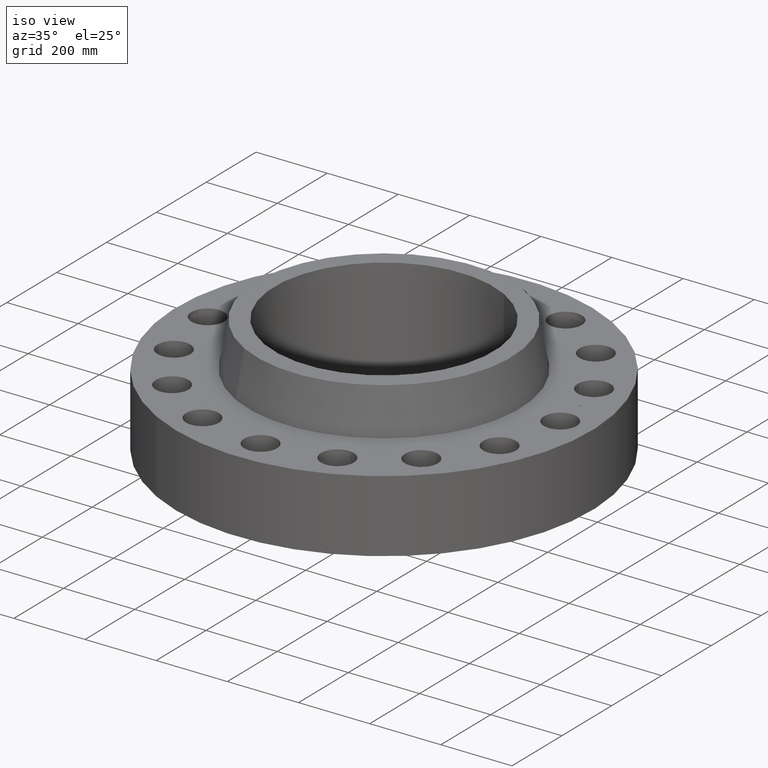
[diagram: clean part render]
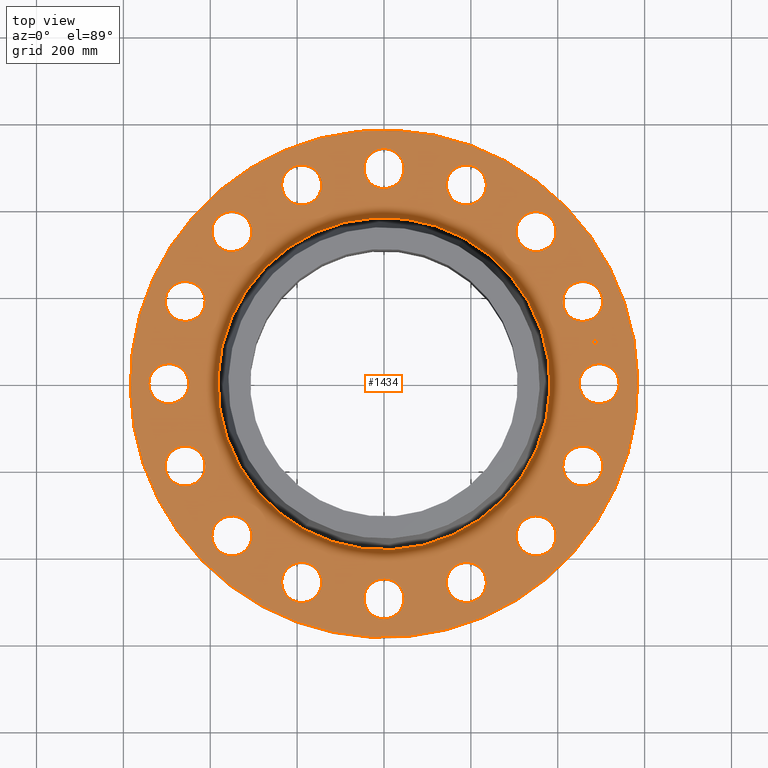
[diagram: tour spotlight — one face highlighted and labeled with its STEP entity id]
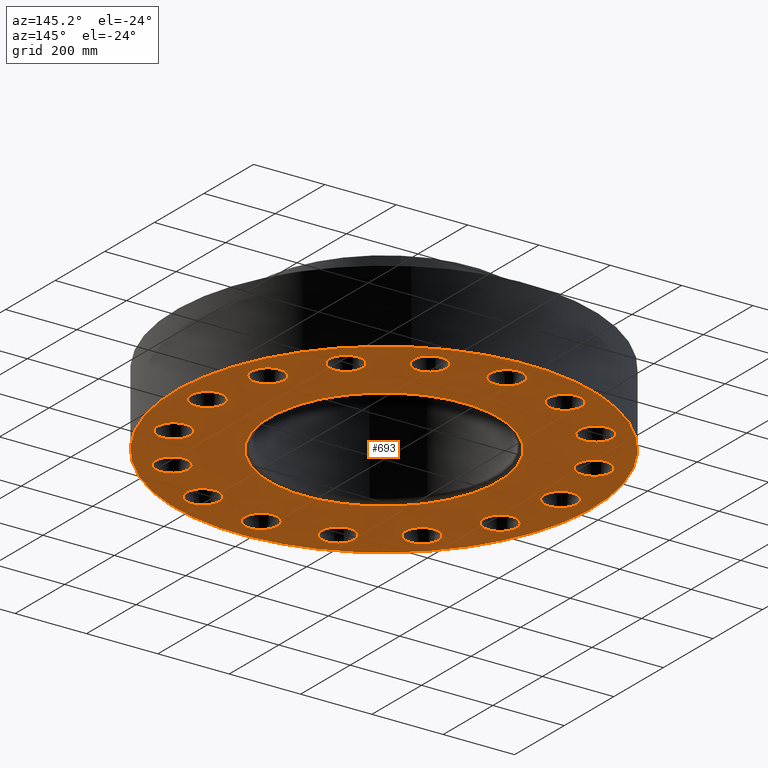
[diagram: tour spotlight — one face highlighted and labeled with its STEP entity id]
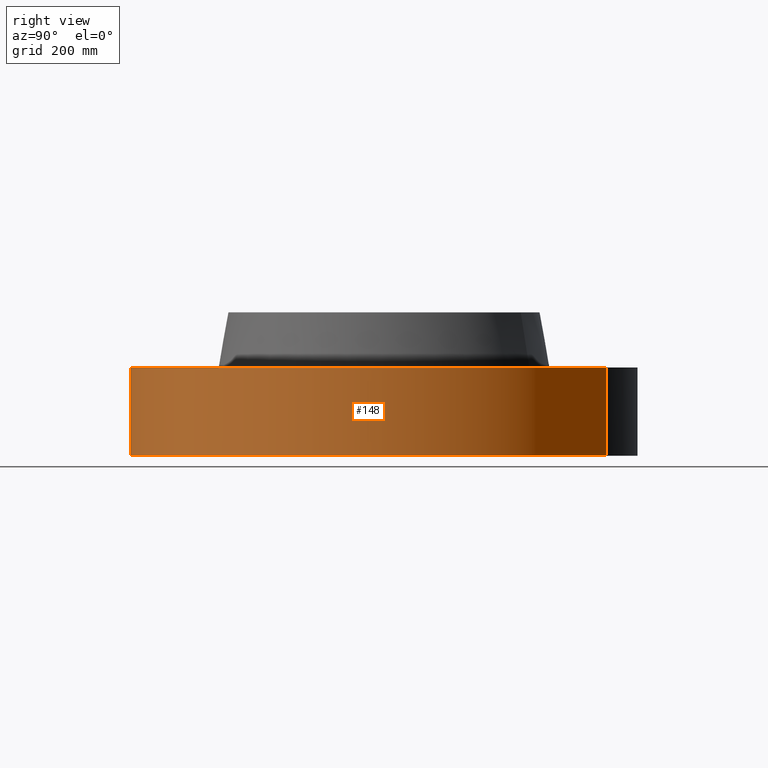
[diagram: tour spotlight — one face highlighted and labeled with its STEP entity id]
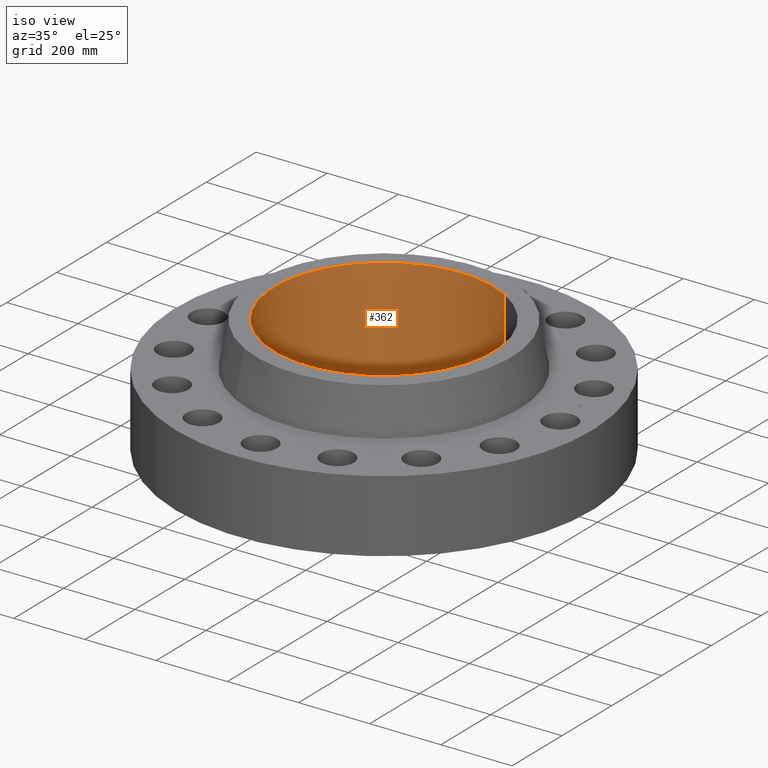
[diagram: tour spotlight — one face highlighted and labeled with its STEP entity id]
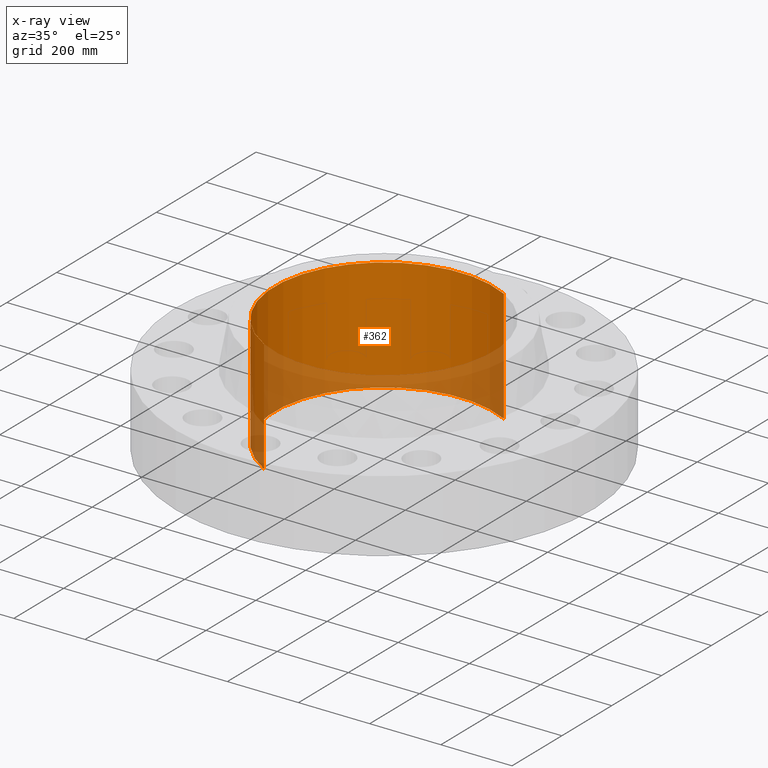
[diagram: x-ray of the same camera — body ghosted, this tour face saturated]
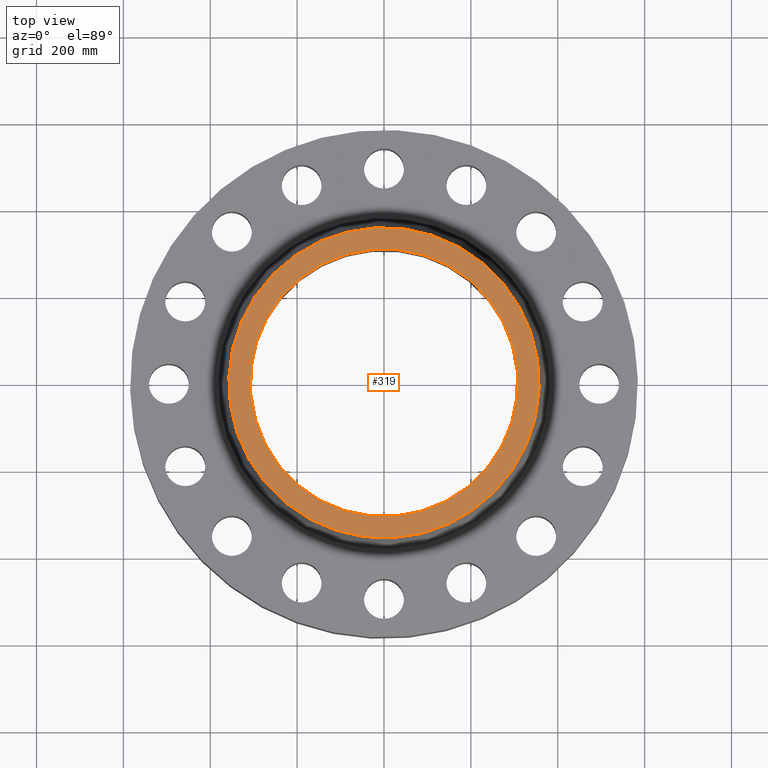
[diagram: tour spotlight — one face highlighted and labeled with its STEP entity id]
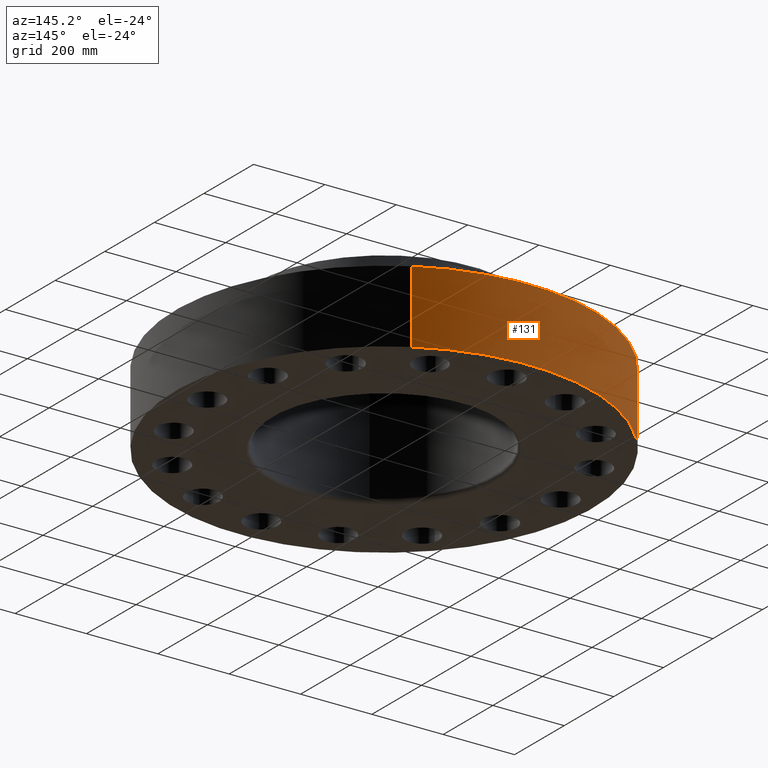
[diagram: tour spotlight — one face highlighted and labeled with its STEP entity id]
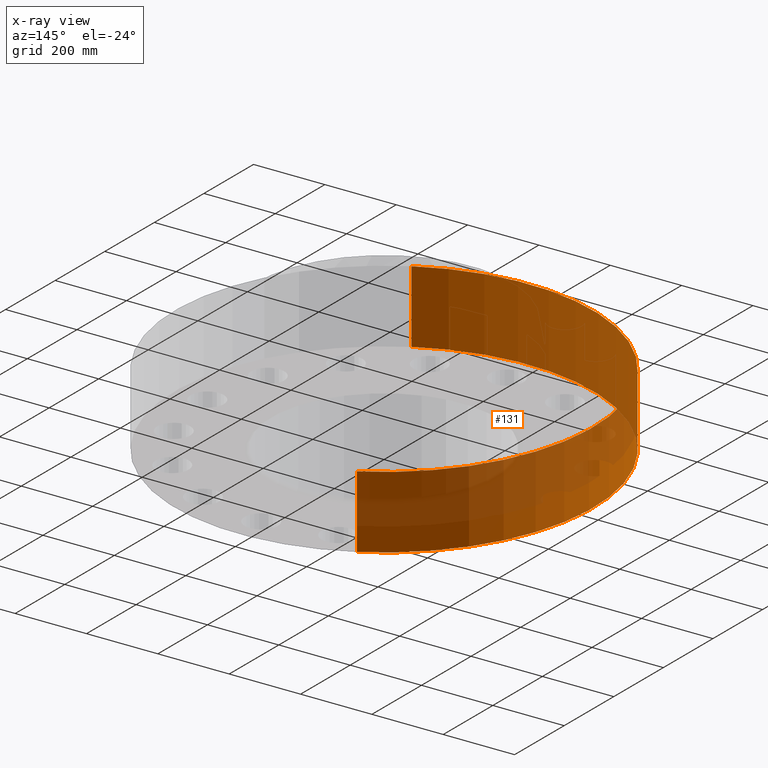
[diagram: x-ray of the same camera — body ghosted, this tour face saturated]
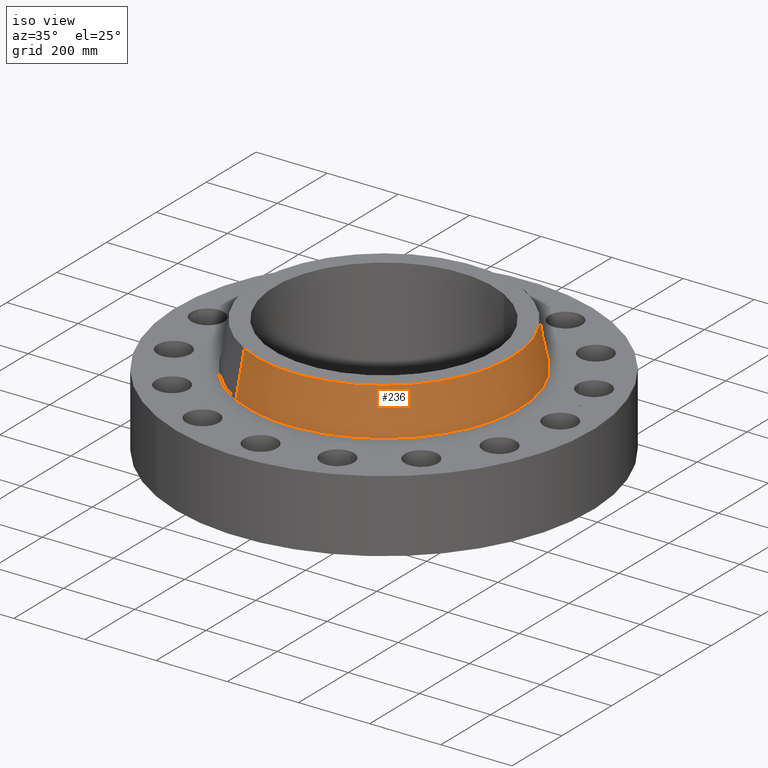
[diagram: tour spotlight — one face highlighted and labeled with its STEP entity id]
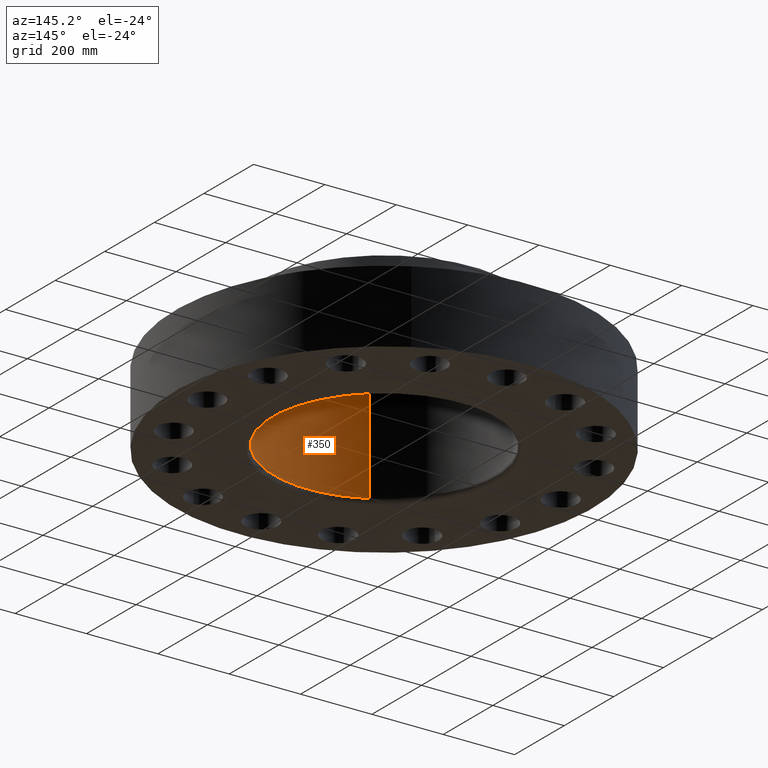
[diagram: tour spotlight — one face highlighted and labeled with its STEP entity id]
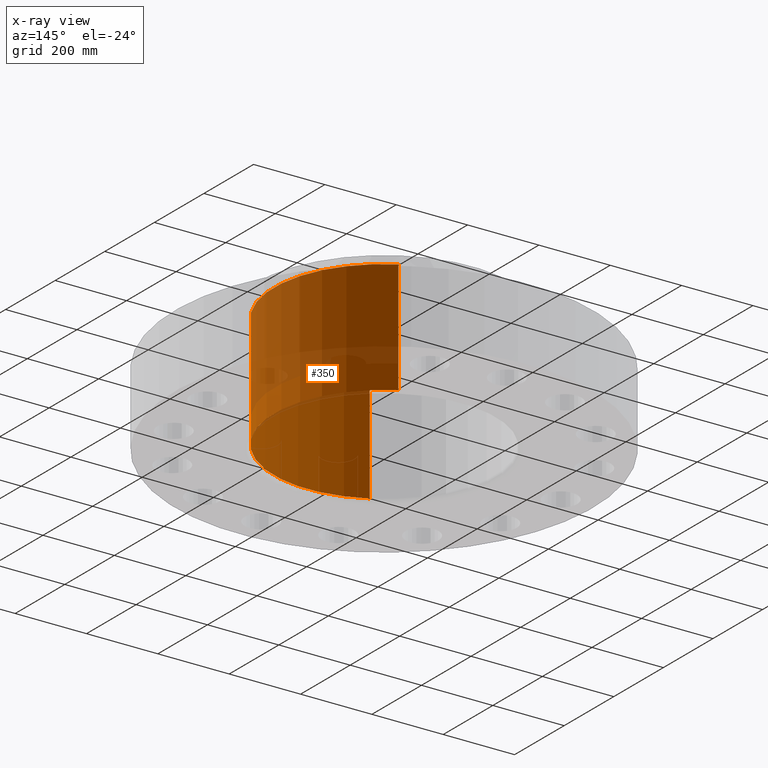
[diagram: x-ray of the same camera — body ghosted, this tour face saturated]
A machine part: a face-by-face anatomy tour. The part has 432 B-rep faces; the first image is the clean iso view, then the 8 largest visible faces are spotlighted one at a time (largest first), each with its STEP entity span.

Face 1 — top view, entity #1434. In plain terms, the highlighted planar face has unit normal (0, 0, -1).
Definition (entity closure, byte-faithful):
#65=AXIS2_PLACEMENT_3D('Circle Axis2P3D',#63,#64,$) ;
#82=AXIS2_PLACEMENT_3D('Circle Axis2P3D',#80,#81,$) ;
#115=AXIS2_PLACEMENT_3D('Circle Axis2P3D',#113,#114,$) ;
#139=AXIS2_PLACEMENT_3D('Circle Axis2P3D',#137,#138,$) ;
#156=AXIS2_PLACEMENT_3D('Circle Axis2P3D',#154,#155,$) ;
#191=AXIS2_PLACEMENT_3D('Circle Axis2P3D',#189,#190,$) ;
#715=AXIS2_PLACEMENT_3D('Circle Axis2P3D',#713,#714,$) ;
#727=AXIS2_PLACEMENT_3D('Circle Axis2P3D',#725,#726,$) ;
#758=AXIS2_PLACEMENT_3D('Circle Axis2P3D',#756,#757,$) ;
#770=AXIS2_PLACEMENT_3D('Circle Axis2P3D',#768,#769,$) ;
#801=AXIS2_PLACEMENT_3D('Circle Axis2P3D',#799,#800,$) ;
#813=AXIS2_PLACEMENT_3D('Circle Axis2P3D',#811,#812,$) ;
#844=AXIS2_PLACEMENT_3D('Circle Axis2P3D',#842,#843,$) ;
#856=AXIS2_PLACEMENT_3D('Circle Axis2P3D',#854,#855,$) ;
#887=AXIS2_PLACEMENT_3D('Circle Axis2P3D',#885,#886,$) ;
#899=AXIS2_PLACEMENT_3D('Circle Axis2P3D',#897,#898,$) ;
#930=AXIS2_PLACEMENT_3D('Circle Axis2P3D',#928,#929,$) ;
#942=AXIS2_PLACEMENT_3D('Circle Axis2P3D',#940,#941,$) ;
#973=AXIS2_PLACEMENT_3D('Circle Axis2P3D',#971,#972,$) ;
#985=AXIS2_PLACEMENT_3D('Circle Axis2P3D',#983,#984,$) ;
#1016=AXIS2_PLACEMENT_3D('Circle Axis2P3D',#1014,#1015,$) ;
#1028=AXIS2_PLACEMENT_3D('Circle Axis2P3D',#1026,#1027,$) ;
#1059=AXIS2_PLACEMENT_3D('Circle Axis2P3D',#1057,#1058,$) ;
#1071=AXIS2_PLACEMENT_3D('Circle Axis2P3D',#1069,#1070,$) ;
#1102=AXIS2_PLACEMENT_3D('Circle Axis2P3D',#1100,#1101,$) ;
#1114=AXIS2_PLACEMENT_3D('Circle Axis2P3D',#1112,#1113,$) ;
#1145=AXIS2_PLACEMENT_3D('Circle Axis2P3D',#1143,#1144,$) ;
#1157=AXIS2_PLACEMENT_3D('Circle Axis2P3D',#1155,#1156,$) ;
#1188=AXIS2_PLACEMENT_3D('Circle Axis2P3D',#1186,#1187,$) ;
#1200=AXIS2_PLACEMENT_3D('Circle Axis2P3D',#1198,#1199,$) ;
#1231=AXIS2_PLACEMENT_3D('Circle Axis2P3D',#1229,#1230,$) ;
#1243=AXIS2_PLACEMENT_3D('Circle Axis2P3D',#1241,#1242,$) ;
#1274=AXIS2_PLACEMENT_3D('Circle Axis2P3D',#1272,#1273,$) ;
#1286=AXIS2_PLACEMENT_3D('Circle Axis2P3D',#1284,#1285,$) ;
#1317=AXIS2_PLACEMENT_3D('Circle Axis2P3D',#1315,#1316,$) ;
#1329=AXIS2_PLACEMENT_3D('Circle Axis2P3D',#1327,#1328,$) ;
#1342=AXIS2_PLACEMENT_3D('Plane Axis2P3D',#1339,#1340,#1341) ;
#1418=AXIS2_PLACEMENT_3D('Circle Axis2P3D',#1416,#1417,$) ;
#1427=AXIS2_PLACEMENT_3D('Circle Axis2P3D',#1425,#1426,$) ;
#46=CARTESIAN_POINT('Vertex',(17.9071876502,0.87015735257,8.00000000003)) ;
#60=CARTESIAN_POINT('Vertex',(21.0928123499,-0.87015735257,8.00000000003)) ;
#63=CARTESIAN_POINT('Axis2P3D Location',(19.5000000001,0.,8.00000000003)) ;
#80=CARTESIAN_POINT('Axis2P3D Location',(19.5000000001,0.,8.00000000003)) ;
#110=CARTESIAN_POINT('Vertex',(-11.0267873879,-20.1843989236,8.00000000003)) ;
#113=CARTESIAN_POINT('Axis2P3D Location',(0.,0.,8.00000000003)) ;
#117=CARTESIAN_POINT('Vertex',(11.0267873879,20.1843989236,8.00000000003)) ;
#137=CARTESIAN_POINT('Axis2P3D Location',(0.,0.,8.00000000003)) ;
#154=CARTESIAN_POINT('Axis2P3D Location',(0.,0.,8.00000000003)) ;
#158=CARTESIAN_POINT('Vertex',(7.21552022665,13.2079211806,8.00000000003)) ;
#160=CARTESIAN_POINT('Vertex',(-7.21552022665,-13.2079211806,8.00000000003)) ;
#189=CARTESIAN_POINT('Axis2P3D Location',(0.,0.,8.00000000003)) ;
#703=CARTESIAN_POINT('Vertex',(-16.8770789573,6.0488634659,8.00000000003)) ;
#710=CARTESIAN_POINT('Vertex',(-19.1542228108,8.8757903964,8.00000000003)) ;
#713=CARTESIAN_POINT('Axis2P3D Location',(-18.015650884,7.46232693115,8.00000000003)) ;
#725=CARTESIAN_POINT('Axis2P3D Location',(-18.015650884,7.46232693115,8.00000000003)) ;
#746=CARTESIAN_POINT('Vertex',(13.2775879842,-12.0469996548,8.00000000003)) ;
#753=CARTESIAN_POINT('Vertex',(14.2995764822,-15.5301648116,8.00000000003)) ;
#756=CARTESIAN_POINT('Axis2P3D Location',(13.7885822332,-13.7885822332,8.00000000003)) ;
#768=CARTESIAN_POINT('Axis2P3D Location',(13.7885822332,-13.7885822332,8.00000000003)) ;
#789=CARTESIAN_POINT('Vertex',(-13.2775879842,12.0469996548,8.00000000003)) ;
#796=CARTESIAN_POINT('Vertex',(-14.2995764822,15.5301648116,8.00000000003)) ;
#799=CARTESIAN_POINT('Axis2P3D Location',(-13.7885822332,13.7885822332,8.00000000003)) ;
#811=CARTESIAN_POINT('Axis2P3D Location',(-13.7885822332,13.7885822332,8.00000000003)) ;
#832=CARTESIAN_POINT('Vertex',(7.6567046021,-16.2110893525,8.00000000003)) ;
#839=CARTESIAN_POINT('Vertex',(7.26794926019,-19.8202124156,8.00000000003)) ;
#842=CARTESIAN_POINT('Axis2P3D Location',(7.46232693115,-18.015650884,8.00000000003)) ;
#854=CARTESIAN_POINT('Axis2P3D Location',(7.46232693115,-18.015650884,8.00000000003)) ;
#875=CARTESIAN_POINT('Vertex',(-7.6567046021,16.2110893525,8.00000000003)) ;
#882=CARTESIAN_POINT('Vertex',(-7.26794926019,19.8202124156,8.00000000003)) ;
#885=CARTESIAN_POINT('Axis2P3D Location',(-7.46232693115,18.015650884,8.00000000003)) ;
#897=CARTESIAN_POINT('Axis2P3D Location',(-7.46232693115,18.015650884,8.00000000003)) ;
#918=CARTESIAN_POINT('Vertex',(0.87015735257,-17.9071876502,8.00000000003)) ;
#925=CARTESIAN_POINT('Vertex',(-0.87015735257,-21.0928123499,8.00000000003)) ;
#928=CARTESIAN_POINT('Axis2P3D Location',(-1.04389924724E-015,-19.5000000001,8.00000000003)) ;
#940=CARTESIAN_POINT('Axis2P3D Location',(-1.04389924724E-015,-19.5000000001,8.00000000003)) ;
#961=CARTESIAN_POINT('Vertex',(-0.87015735257,17.9071876502,8.00000000003)) ;
#968=CARTESIAN_POINT('Vertex',(0.87015735257,21.0928123499,8.00000000003)) ;
#971=CARTESIAN_POINT('Axis2P3D Location',(-1.34416201111E-015,19.5000000001,8.00000000003)) ;
#983=CARTESIAN_POINT('Axis2P3D Location',(-1.34416201111E-015,19.5000000001,8.00000000003)) ;
#1004=CARTESIAN_POINT('Vertex',(-6.0488634659,-16.8770789573,8.00000000003)) ;
#1011=CARTESIAN_POINT('Vertex',(-8.8757903964,-19.1542228108,8.00000000003)) ;
#1014=CARTESIAN_POINT('Axis2P3D Location',(-7.46232693115,-18.015650884,8.00000000003)) ;
#1026=CARTESIAN_POINT('Axis2P3D Location',(-7.46232693115,-18.015650884,8.00000000003)) ;
#1047=CARTESIAN_POINT('Vertex',(6.0488634659,16.8770789573,8.00000000003)) ;
#1054=CARTESIAN_POINT('Vertex',(8.8757903964,19.1542228108,8.00000000003)) ;
#1057=CARTESIAN_POINT('Axis2P3D Location',(7.46232693115,18.015650884,8.00000000003)) ;
#1069=CARTESIAN_POINT('Axis2P3D Location',(7.46232693115,18.015650884,8.00000000003)) ;
#1090=CARTESIAN_POINT('Vertex',(-12.0469996548,-13.2775879842,8.00000000003)) ;
#1097=CARTESIAN_POINT('Vertex',(-15.5301648116,-14.2995764822,8.00000000003)) ;
#1100=CARTESIAN_POINT('Axis2P3D Location',(-13.7885822332,-13.7885822332,8.00000000003)) ;
#1112=CARTESIAN_POINT('Axis2P3D Location',(-13.7885822332,-13.7885822332,8.00000000003)) ;
#1133=CARTESIAN_POINT('Vertex',(12.0469996548,13.2775879842,8.00000000003)) ;
#1140=CARTESIAN_POINT('Vertex',(15.5301648116,14.2995764822,8.00000000003)) ;
#1143=CARTESIAN_POINT('Axis2P3D Location',(13.7885822332,13.7885822332,8.00000000003)) ;
#1155=CARTESIAN_POINT('Axis2P3D Location',(13.7885822332,13.7885822332,8.00000000003)) ;
#1176=CARTESIAN_POINT('Vertex',(-16.2110893525,-7.6567046021,8.00000000003)) ;
#1183=CARTESIAN_POINT('Vertex',(-19.8202124156,-7.26794926019,8.00000000003)) ;
#1186=CARTESIAN_POINT('Axis2P3D Location',(-18.015650884,-7.46232693115,8.00000000003)) ;
#1198=CARTESIAN_POINT('Axis2P3D Location',(-18.015650884,-7.46232693115,8.00000000003)) ;
#1219=CARTESIAN_POINT('Vertex',(16.2110893525,7.6567046021,8.00000000003)) ;
#1226=CARTESIAN_POINT('Vertex',(19.8202124156,7.26794926019,8.00000000003)) ;
#1229=CARTESIAN_POINT('Axis2P3D Location',(18.015650884,7.46232693115,8.00000000003)) ;
#1241=CARTESIAN_POINT('Axis2P3D Location',(18.015650884,7.46232693115,8.00000000003)) ;
#1262=CARTESIAN_POINT('Vertex',(-17.9071876502,-0.87015735257,8.00000000003)) ;
#1269=CARTESIAN_POINT('Vertex',(-21.0928123499,0.87015735257,8.00000000003)) ;
#1272=CARTESIAN_POINT('Axis2P3D Location',(-19.5000000001,-2.38806125835E-015,8.00000000003)) ;
#1284=CARTESIAN_POINT('Axis2P3D Location',(-19.5000000001,-2.38806125835E-015,8.00000000003)) ;
#1305=CARTESIAN_POINT('Vertex',(16.8770789573,-6.0488634659,8.00000000003)) ;
#1312=CARTESIAN_POINT('Vertex',(19.1542228108,-8.8757903964,8.00000000003)) ;
#1315=CARTESIAN_POINT('Axis2P3D Location',(18.015650884,-7.46232693115,8.00000000003)) ;
#1327=CARTESIAN_POINT('Axis2P3D Location',(18.015650884,-7.46232693115,8.00000000003)) ;
#1339=CARTESIAN_POINT('Axis2P3D Location',(0.,23.0000000001,8.00000000003)) ;
#1416=CARTESIAN_POINT('Axis2P3D Location',(19.1253129679,3.80426127933,8.00000000003)) ;
#1420=CARTESIAN_POINT('Vertex',(19.0770281132,4.04700563623,8.00000000003)) ;
#1422=CARTESIAN_POINT('Vertex',(19.1735978226,3.56151692243,8.00000000003)) ;
#1425=CARTESIAN_POINT('Axis2P3D Location',(19.1253129679,3.80426127933,8.00000000003)) ;
#64=DIRECTION('Axis2P3D Direction',(0.,-0.,-0.0393700787402)) ;
#81=DIRECTION('Axis2P3D Direction',(0.,-0.,-0.0393700787402)) ;
#114=DIRECTION('Axis2P3D Direction',(0.,0.,-0.0393700787402)) ;
#138=DIRECTION('Axis2P3D Direction',(0.,0.,-0.0393700787402)) ;
#155=DIRECTION('Axis2P3D Direction',(0.,0.,-0.0393700787402)) ;
#190=DIRECTION('Axis2P3D Direction',(0.,0.,-0.0393700787402)) ;
#714=DIRECTION('Axis2P3D Direction',(0.,0.,-0.0393700787402)) ;
#726=DIRECTION('Axis2P3D Direction',(0.,0.,-0.0393700787402)) ;
#757=DIRECTION('Axis2P3D Direction',(0.,-0.,-0.0393700787402)) ;
#769=DIRECTION('Axis2P3D Direction',(0.,-0.,-0.0393700787402)) ;
#800=DIRECTION('Axis2P3D Direction',(0.,0.,-0.0393700787402)) ;
#812=DIRECTION('Axis2P3D Direction',(0.,0.,-0.0393700787402)) ;
#843=DIRECTION('Axis2P3D Direction',(0.,-0.,-0.0393700787402)) ;
#855=DIRECTION('Axis2P3D Direction',(0.,-0.,-0.0393700787402)) ;
#886=DIRECTION('Axis2P3D Direction',(0.,0.,-0.0393700787402)) ;
#898=DIRECTION('Axis2P3D Direction',(0.,0.,-0.0393700787402)) ;
#929=DIRECTION('Axis2P3D Direction',(0.,-0.,-0.0393700787402)) ;
#941=DIRECTION('Axis2P3D Direction',(0.,-0.,-0.0393700787402)) ;
#972=DIRECTION('Axis2P3D Direction',(0.,0.,-0.0393700787402)) ;
#984=DIRECTION('Axis2P3D Direction',(0.,0.,-0.0393700787402)) ;
#1015=DIRECTION('Axis2P3D Direction',(-0.,0.,-0.0393700787402)) ;
#1027=DIRECTION('Axis2P3D Direction',(-0.,0.,-0.0393700787402)) ;
#1058=DIRECTION('Axis2P3D Direction',(0.,0.,-0.0393700787402)) ;
#1070=DIRECTION('Axis2P3D Direction',(0.,0.,-0.0393700787402)) ;
#1101=DIRECTION('Axis2P3D Direction',(-0.,0.,-0.0393700787402)) ;
#1113=DIRECTION('Axis2P3D Direction',(-0.,0.,-0.0393700787402)) ;
#1144=DIRECTION('Axis2P3D Direction',(0.,0.,-0.0393700787402)) ;
#1156=DIRECTION('Axis2P3D Direction',(0.,0.,-0.0393700787402)) ;
#1187=DIRECTION('Axis2P3D Direction',(-0.,0.,-0.0393700787402)) ;
#1199=DIRECTION('Axis2P3D Direction',(-0.,0.,-0.0393700787402)) ;
#1230=DIRECTION('Axis2P3D Direction',(0.,0.,-0.0393700787402)) ;
#1242=DIRECTION('Axis2P3D Direction',(0.,0.,-0.0393700787402)) ;
#1273=DIRECTION('Axis2P3D Direction',(-0.,0.,-0.0393700787402)) ;
#1285=DIRECTION('Axis2P3D Direction',(-0.,0.,-0.0393700787402)) ;
#1316=DIRECTION('Axis2P3D Direction',(0.,-0.,-0.0393700787402)) ;
#1328=DIRECTION('Axis2P3D Direction',(0.,-0.,-0.0393700787402)) ;
#1340=DIRECTION('Axis2P3D Direction',(0.,0.,-0.0393700787402)) ;
#1341=DIRECTION('Axis2P3D XDirection',(0.0393700787402,0.,0.)) ;
#1417=DIRECTION('Axis2P3D Direction',(0.,0.,-0.0393700787402)) ;
#1426=DIRECTION('Axis2P3D Direction',(0.,0.,-0.0393700787402)) ;
#1345=ORIENTED_EDGE('',*,*,#141,.F.) ;
#1346=ORIENTED_EDGE('',*,*,#119,.F.) ;
#1349=ORIENTED_EDGE('',*,*,#67,.T.) ;
#1350=ORIENTED_EDGE('',*,*,#84,.T.) ;
#1353=ORIENTED_EDGE('',*,*,#193,.T.) ;
#1354=ORIENTED_EDGE('',*,*,#162,.T.) ;
#1357=ORIENTED_EDGE('',*,*,#1331,.T.) ;
#1358=ORIENTED_EDGE('',*,*,#1319,.T.) ;
#1361=ORIENTED_EDGE('',*,*,#772,.T.) ;
#1362=ORIENTED_EDGE('',*,*,#760,.T.) ;
#1365=ORIENTED_EDGE('',*,*,#858,.T.) ;
#1366=ORIENTED_EDGE('',*,*,#846,.T.) ;
#1369=ORIENTED_EDGE('',*,*,#944,.T.) ;
#1370=ORIENTED_EDGE('',*,*,#932,.T.) ;
#1373=ORIENTED_EDGE('',*,*,#1030,.T.) ;
#1374=ORIENTED_EDGE('',*,*,#1018,.T.) ;
#1377=ORIENTED_EDGE('',*,*,#1116,.T.) ;
#1378=ORIENTED_EDGE('',*,*,#1104,.T.) ;
#1381=ORIENTED_EDGE('',*,*,#1202,.T.) ;
#1382=ORIENTED_EDGE('',*,*,#1190,.T.) ;
#1385=ORIENTED_EDGE('',*,*,#1288,.T.) ;
#1386=ORIENTED_EDGE('',*,*,#1276,.T.) ;
#1389=ORIENTED_EDGE('',*,*,#729,.T.) ;
#1390=ORIENTED_EDGE('',*,*,#717,.T.) ;
#1393=ORIENTED_EDGE('',*,*,#815,.T.) ;
#1394=ORIENTED_EDGE('',*,*,#803,.T.) ;
#1397=ORIENTED_EDGE('',*,*,#901,.T.) ;
#1398=ORIENTED_EDGE('',*,*,#889,.T.) ;
#1401=ORIENTED_EDGE('',*,*,#987,.T.) ;
#1402=ORIENTED_EDGE('',*,*,#975,.T.) ;
#1405=ORIENTED_EDGE('',*,*,#1073,.T.) ;
#1406=ORIENTED_EDGE('',*,*,#1061,.T.) ;
#1409=ORIENTED_EDGE('',*,*,#1159,.T.) ;
#1410=ORIENTED_EDGE('',*,*,#1147,.T.) ;
#1413=ORIENTED_EDGE('',*,*,#1245,.T.) ;
#1414=ORIENTED_EDGE('',*,*,#1233,.T.) ;
#1431=ORIENTED_EDGE('',*,*,#1424,.T.) ;
#1432=ORIENTED_EDGE('',*,*,#1429,.T.) ;
#1351=FACE_BOUND('',#1348,.T.) ;
#1355=FACE_BOUND('',#1352,.T.) ;
#1359=FACE_BOUND('',#1356,.T.) ;
#1363=FACE_BOUND('',#1360,.T.) ;
#1367=FACE_BOUND('',#1364,.T.) ;
#1371=FACE_BOUND('',#1368,.T.) ;
#1375=FACE_BOUND('',#1372,.T.) ;
#1379=FACE_BOUND('',#1376,.T.) ;
#1383=FACE_BOUND('',#1380,.T.) ;
#1387=FACE_BOUND('',#1384,.T.) ;
#1391=FACE_BOUND('',#1388,.T.) ;
#1395=FACE_BOUND('',#1392,.T.) ;
#1399=FACE_BOUND('',#1396,.T.) ;
#1403=FACE_BOUND('',#1400,.T.) ;
#1407=FACE_BOUND('',#1404,.T.) ;
#1411=FACE_BOUND('',#1408,.T.) ;
#1415=FACE_BOUND('',#1412,.T.) ;
#1433=FACE_BOUND('',#1430,.T.) ;
#1434=ADVANCED_FACE('PartBody',(#1347,#1351,#1355,#1359,#1363,#1367,#1371,#1375,#1379,#1383,#1387,#1391,#1395,#1399,#1403,#1407,#1411,#1415,#1433),#1343,.F.) ;
#66=CIRCLE('generated circle',#65,1.81500000001) ;
#83=CIRCLE('generated circle',#82,1.81500000001) ;
#116=CIRCLE('generated circle',#115,23.0000000001) ;
#140=CIRCLE('generated circle',#139,23.0000000001) ;
#157=CIRCLE('generated circle',#156,15.0503459779) ;
#192=CIRCLE('generated circle',#191,15.0503459779) ;
#716=CIRCLE('generated circle',#715,1.81500000001) ;
#728=CIRCLE('generated circle',#727,1.81500000001) ;
#759=CIRCLE('generated circle',#758,1.81500000001) ;
#771=CIRCLE('generated circle',#770,1.81500000001) ;
#802=CIRCLE('generated circle',#801,1.81500000001) ;
#814=CIRCLE('generated circle',#813,1.81500000001) ;
#845=CIRCLE('generated circle',#844,1.81500000001) ;
#857=CIRCLE('generated circle',#856,1.81500000001) ;
#888=CIRCLE('generated circle',#887,1.81500000001) ;
#900=CIRCLE('generated circle',#899,1.81500000001) ;
#931=CIRCLE('generated circle',#930,1.81500000001) ;
#943=CIRCLE('generated circle',#942,1.81500000001) ;
#974=CIRCLE('generated circle',#973,1.81500000001) ;
#986=CIRCLE('generated circle',#985,1.81500000001) ;
#1017=CIRCLE('generated circle',#1016,1.81500000001) ;
#1029=CIRCLE('generated circle',#1028,1.81500000001) ;
#1060=CIRCLE('generated circle',#1059,1.81500000001) ;
#1072=CIRCLE('generated circle',#1071,1.81500000001) ;
#1103=CIRCLE('generated circle',#1102,1.81500000001) ;
#1115=CIRCLE('generated circle',#1114,1.81500000001) ;
#1146=CIRCLE('generated circle',#1145,1.81500000001) ;
#1158=CIRCLE('generated circle',#1157,1.81500000001) ;
#1189=CIRCLE('generated circle',#1188,1.81500000001) ;
#1201=CIRCLE('generated circle',#1200,1.81500000001) ;
#1232=CIRCLE('generated circle',#1231,1.81500000001) ;
#1244=CIRCLE('generated circle',#1243,1.81500000001) ;
#1275=CIRCLE('generated circle',#1274,1.81500000001) ;
#1287=CIRCLE('generated circle',#1286,1.81500000001) ;
#1318=CIRCLE('generated circle',#1317,1.81500000001) ;
#1330=CIRCLE('generated circle',#1329,1.81500000001) ;
#1419=CIRCLE('generated circle',#1418,0.247500000001) ;
#1428=CIRCLE('generated circle',#1427,0.247500000001) ;
#67=EDGE_CURVE('',#47,#61,#66,.T.) ;
#84=EDGE_CURVE('',#61,#47,#83,.T.) ;
#119=EDGE_CURVE('',#111,#118,#116,.T.) ;
#141=EDGE_CURVE('',#118,#111,#140,.T.) ;
#162=EDGE_CURVE('',#159,#161,#157,.T.) ;
#193=EDGE_CURVE('',#161,#159,#192,.T.) ;
#717=EDGE_CURVE('',#704,#711,#716,.T.) ;
#729=EDGE_CURVE('',#711,#704,#728,.T.) ;
#760=EDGE_CURVE('',#747,#754,#759,.T.) ;
#772=EDGE_CURVE('',#754,#747,#771,.T.) ;
#803=EDGE_CURVE('',#790,#797,#802,.T.) ;
#815=EDGE_CURVE('',#797,#790,#814,.T.) ;
#846=EDGE_CURVE('',#833,#840,#845,.T.) ;
#858=EDGE_CURVE('',#840,#833,#857,.T.) ;
#889=EDGE_CURVE('',#876,#883,#888,.T.) ;
#901=EDGE_CURVE('',#883,#876,#900,.T.) ;
#932=EDGE_CURVE('',#919,#926,#931,.T.) ;
#944=EDGE_CURVE('',#926,#919,#943,.T.) ;
#975=EDGE_CURVE('',#962,#969,#974,.T.) ;
#987=EDGE_CURVE('',#969,#962,#986,.T.) ;
#1018=EDGE_CURVE('',#1005,#1012,#1017,.T.) ;
#1030=EDGE_CURVE('',#1012,#1005,#1029,.T.) ;
#1061=EDGE_CURVE('',#1048,#1055,#1060,.T.) ;
#1073=EDGE_CURVE('',#1055,#1048,#1072,.T.) ;
#1104=EDGE_CURVE('',#1091,#1098,#1103,.T.) ;
#1116=EDGE_CURVE('',#1098,#1091,#1115,.T.) ;
#1147=EDGE_CURVE('',#1134,#1141,#1146,.T.) ;
#1159=EDGE_CURVE('',#1141,#1134,#1158,.T.) ;
#1190=EDGE_CURVE('',#1177,#1184,#1189,.T.) ;
#1202=EDGE_CURVE('',#1184,#1177,#1201,.T.) ;
#1233=EDGE_CURVE('',#1220,#1227,#1232,.T.) ;
#1245=EDGE_CURVE('',#1227,#1220,#1244,.T.) ;
#1276=EDGE_CURVE('',#1263,#1270,#1275,.T.) ;
#1288=EDGE_CURVE('',#1270,#1263,#1287,.T.) ;
#1319=EDGE_CURVE('',#1306,#1313,#1318,.T.) ;
#1331=EDGE_CURVE('',#1313,#1306,#1330,.T.) ;
#1424=EDGE_CURVE('',#1421,#1423,#1419,.T.) ;
#1429=EDGE_CURVE('',#1423,#1421,#1428,.T.) ;
#1344=EDGE_LOOP('',(#1345,#1346)) ;
#1348=EDGE_LOOP('',(#1349,#1350)) ;
#1352=EDGE_LOOP('',(#1353,#1354)) ;
#1356=EDGE_LOOP('',(#1357,#1358)) ;
#1360=EDGE_LOOP('',(#1361,#1362)) ;
#1364=EDGE_LOOP('',(#1365,#1366)) ;
#1368=EDGE_LOOP('',(#1369,#1370)) ;
#1372=EDGE_LOOP('',(#1373,#1374)) ;
#1376=EDGE_LOOP('',(#1377,#1378)) ;
#1380=EDGE_LOOP('',(#1381,#1382)) ;
#1384=EDGE_LOOP('',(#1385,#1386)) ;
#1388=EDGE_LOOP('',(#1389,#1390)) ;
#1392=EDGE_LOOP('',(#1393,#1394)) ;
#1396=EDGE_LOOP('',(#1397,#1398)) ;
#1400=EDGE_LOOP('',(#1401,#1402)) ;
#1404=EDGE_LOOP('',(#1405,#1406)) ;
#1408=EDGE_LOOP('',(#1409,#1410)) ;
#1412=EDGE_LOOP('',(#1413,#1414)) ;
#1430=EDGE_LOOP('',(#1431,#1432)) ;
#1347=FACE_OUTER_BOUND('',#1344,.T.) ;
#1343=PLANE('',#1342) ;
#47=VERTEX_POINT('',#46) ;
#61=VERTEX_POINT('',#60) ;
#111=VERTEX_POINT('',#110) ;
#118=VERTEX_POINT('',#117) ;
#159=VERTEX_POINT('',#158) ;
#161=VERTEX_POINT('',#160) ;
#704=VERTEX_POINT('',#703) ;
#711=VERTEX_POINT('',#710) ;
#747=VERTEX_POINT('',#746) ;
#754=VERTEX_POINT('',#753) ;
#790=VERTEX_POINT('',#789) ;
#797=VERTEX_POINT('',#796) ;
#833=VERTEX_POINT('',#832) ;
#840=VERTEX_POINT('',#839) ;
#876=VERTEX_POINT('',#875) ;
#883=VERTEX_POINT('',#882) ;
#919=VERTEX_POINT('',#918) ;
#926=VERTEX_POINT('',#925) ;
#962=VERTEX_POINT('',#961) ;
#969=VERTEX_POINT('',#968) ;
#1005=VERTEX_POINT('',#1004) ;
#1012=VERTEX_POINT('',#1011) ;
#1048=VERTEX_POINT('',#1047) ;
#1055=VERTEX_POINT('',#1054) ;
#1091=VERTEX_POINT('',#1090) ;
#1098=VERTEX_POINT('',#1097) ;
#1134=VERTEX_POINT('',#1133) ;
#1141=VERTEX_POINT('',#1140) ;
#1177=VERTEX_POINT('',#1176) ;
#1184=VERTEX_POINT('',#1183) ;
#1220=VERTEX_POINT('',#1219) ;
#1227=VERTEX_POINT('',#1226) ;
#1263=VERTEX_POINT('',#1262) ;
#1270=VERTEX_POINT('',#1269) ;
#1306=VERTEX_POINT('',#1305) ;
#1313=VERTEX_POINT('',#1312) ;
#1421=VERTEX_POINT('',#1420) ;
#1423=VERTEX_POINT('',#1422) ;

Face 2 — auxiliary view, entity #693. In plain terms, the highlighted planar face has unit normal (0, 0, -1).
Definition (entity closure, byte-faithful):
#51=AXIS2_PLACEMENT_3D('Circle Axis2P3D',#49,#50,$) ;
#77=AXIS2_PLACEMENT_3D('Circle Axis2P3D',#75,#76,$) ;
#99=AXIS2_PLACEMENT_3D('Circle Axis2P3D',#97,#98,$) ;
#134=AXIS2_PLACEMENT_3D('Circle Axis2P3D',#132,#133,$) ;
#377=AXIS2_PLACEMENT_3D('Circle Axis2P3D',#375,#376,$) ;
#396=AXIS2_PLACEMENT_3D('Circle Axis2P3D',#394,#395,$) ;
#409=AXIS2_PLACEMENT_3D('Plane Axis2P3D',#406,#407,#408) ;
#425=AXIS2_PLACEMENT_3D('Circle Axis2P3D',#423,#424,$) ;
#434=AXIS2_PLACEMENT_3D('Circle Axis2P3D',#432,#433,$) ;
#443=AXIS2_PLACEMENT_3D('Circle Axis2P3D',#441,#442,$) ;
#452=AXIS2_PLACEMENT_3D('Circle Axis2P3D',#450,#451,$) ;
#461=AXIS2_PLACEMENT_3D('Circle Axis2P3D',#459,#460,$) ;
#470=AXIS2_PLACEMENT_3D('Circle Axis2P3D',#468,#469,$) ;
#479=AXIS2_PLACEMENT_3D('Circle Axis2P3D',#477,#478,$) ;
#488=AXIS2_PLACEMENT_3D('Circle Axis2P3D',#486,#487,$) ;
#497=AXIS2_PLACEMENT_3D('Circle Axis2P3D',#495,#496,$) ;
#506=AXIS2_PLACEMENT_3D('Circle Axis2P3D',#504,#505,$) ;
#515=AXIS2_PLACEMENT_3D('Circle Axis2P3D',#513,#514,$) ;
#524=AXIS2_PLACEMENT_3D('Circle Axis2P3D',#522,#523,$) ;
#533=AXIS2_PLACEMENT_3D('Circle Axis2P3D',#531,#532,$) ;
#542=AXIS2_PLACEMENT_3D('Circle Axis2P3D',#540,#541,$) ;
#551=AXIS2_PLACEMENT_3D('Circle Axis2P3D',#549,#550,$) ;
#560=AXIS2_PLACEMENT_3D('Circle Axis2P3D',#558,#559,$) ;
#569=AXIS2_PLACEMENT_3D('Circle Axis2P3D',#567,#568,$) ;
#578=AXIS2_PLACEMENT_3D('Circle Axis2P3D',#576,#577,$) ;
#587=AXIS2_PLACEMENT_3D('Circle Axis2P3D',#585,#586,$) ;
#596=AXIS2_PLACEMENT_3D('Circle Axis2P3D',#594,#595,$) ;
#605=AXIS2_PLACEMENT_3D('Circle Axis2P3D',#603,#604,$) ;
#614=AXIS2_PLACEMENT_3D('Circle Axis2P3D',#612,#613,$) ;
#623=AXIS2_PLACEMENT_3D('Circle Axis2P3D',#621,#622,$) ;
#632=AXIS2_PLACEMENT_3D('Circle Axis2P3D',#630,#631,$) ;
#641=AXIS2_PLACEMENT_3D('Circle Axis2P3D',#639,#640,$) ;
#650=AXIS2_PLACEMENT_3D('Circle Axis2P3D',#648,#649,$) ;
#659=AXIS2_PLACEMENT_3D('Circle Axis2P3D',#657,#658,$) ;
#668=AXIS2_PLACEMENT_3D('Circle Axis2P3D',#666,#667,$) ;
#677=AXIS2_PLACEMENT_3D('Circle Axis2P3D',#675,#676,$) ;
#686=AXIS2_PLACEMENT_3D('Circle Axis2P3D',#684,#685,$) ;
#44=CARTESIAN_POINT('Vertex',(17.9071876502,0.87015735257,0.)) ;
#49=CARTESIAN_POINT('Axis2P3D Location',(19.5000000001,0.,0.)) ;
#53=CARTESIAN_POINT('Vertex',(21.0928123499,-0.87015735257,0.)) ;
#75=CARTESIAN_POINT('Axis2P3D Location',(19.5000000001,0.,0.)) ;
#97=CARTESIAN_POINT('Axis2P3D Location',(0.,0.,2.23792987641E-015)) ;
#101=CARTESIAN_POINT('Vertex',(-11.0267873879,-20.1843989236,3.35689481461E-015)) ;
#103=CARTESIAN_POINT('Vertex',(11.0267873879,20.1843989236,3.35689481461E-015)) ;
#132=CARTESIAN_POINT('Axis2P3D Location',(0.,0.,2.23792987641E-015)) ;
#372=CARTESIAN_POINT('Vertex',(-6.0527474249,-11.0794798439,-1.39870617276E-015)) ;
#375=CARTESIAN_POINT('Axis2P3D Location',(0.,0.,-1.39870617276E-015)) ;
#379=CARTESIAN_POINT('Vertex',(6.0527474249,11.0794798439,-1.39870617276E-015)) ;
#394=CARTESIAN_POINT('Axis2P3D Location',(0.,0.,-1.39870617276E-015)) ;
#406=CARTESIAN_POINT('Axis2P3D Location',(0.,12.6250000001,0.)) ;
#423=CARTESIAN_POINT('Axis2P3D Location',(18.015650884,-7.46232693115,0.)) ;
#427=CARTESIAN_POINT('Vertex',(16.8770789573,-6.0488634659,0.)) ;
#429=CARTESIAN_POINT('Vertex',(19.1542228108,-8.8757903964,0.)) ;
#432=CARTESIAN_POINT('Axis2P3D Location',(18.015650884,-7.46232693115,0.)) ;
#441=CARTESIAN_POINT('Axis2P3D Location',(13.7885822332,-13.7885822332,0.)) ;
#445=CARTESIAN_POINT('Vertex',(13.2775879842,-12.0469996548,0.)) ;
#447=CARTESIAN_POINT('Vertex',(14.2995764822,-15.5301648116,0.)) ;
#450=CARTESIAN_POINT('Axis2P3D Location',(13.7885822332,-13.7885822332,0.)) ;
#459=CARTESIAN_POINT('Axis2P3D Location',(7.46232693115,-18.015650884,0.)) ;
#463=CARTESIAN_POINT('Vertex',(7.6567046021,-16.2110893525,0.)) ;
#465=CARTESIAN_POINT('Vertex',(7.26794926019,-19.8202124156,0.)) ;
#468=CARTESIAN_POINT('Axis2P3D Location',(7.46232693115,-18.015650884,0.)) ;
#477=CARTESIAN_POINT('Axis2P3D Location',(-2.93728296279E-015,-19.5000000001,0.)) ;
#481=CARTESIAN_POINT('Vertex',(0.87015735257,-17.9071876502,0.)) ;
#483=CARTESIAN_POINT('Vertex',(-0.87015735257,-21.0928123499,0.)) ;
#486=CARTESIAN_POINT('Axis2P3D Location',(-4.05624790099E-015,-19.5000000001,0.)) ;
#495=CARTESIAN_POINT('Axis2P3D Location',(-7.46232693115,-18.015650884,0.)) ;
#499=CARTESIAN_POINT('Vertex',(-6.0488634659,-16.8770789573,0.)) ;
#501=CARTESIAN_POINT('Vertex',(-8.8757903964,-19.1542228108,0.)) ;
#504=CARTESIAN_POINT('Axis2P3D Location',(-7.46232693115,-18.015650884,0.)) ;
#513=CARTESIAN_POINT('Axis2P3D Location',(-13.7885822332,-13.7885822332,0.)) ;
#517=CARTESIAN_POINT('Vertex',(-12.0469996548,-13.2775879842,0.)) ;
#519=CARTESIAN_POINT('Vertex',(-15.5301648116,-14.2995764822,0.)) ;
#522=CARTESIAN_POINT('Axis2P3D Location',(-13.7885822332,-13.7885822332,0.)) ;
#531=CARTESIAN_POINT('Axis2P3D Location',(-18.015650884,-7.46232693115,0.)) ;
#535=CARTESIAN_POINT('Vertex',(-16.2110893525,-7.6567046021,0.)) ;
#537=CARTESIAN_POINT('Vertex',(-19.8202124156,-7.26794926019,0.)) ;
#540=CARTESIAN_POINT('Axis2P3D Location',(-18.015650884,-7.46232693115,0.)) ;
#549=CARTESIAN_POINT('Axis2P3D Location',(-19.5000000001,0.,0.)) ;
#553=CARTESIAN_POINT('Vertex',(-17.9071876502,-0.87015735257,0.)) ;
#555=CARTESIAN_POINT('Vertex',(-21.0928123499,0.87015735257,0.)) ;
#558=CARTESIAN_POINT('Axis2P3D Location',(-19.5000000001,-4.47585975282E-015,0.)) ;
#567=CARTESIAN_POINT('Axis2P3D Location',(-18.015650884,7.46232693115,0.)) ;
#571=CARTESIAN_POINT('Vertex',(-16.8770789573,6.0488634659,0.)) ;
#573=CARTESIAN_POINT('Vertex',(-19.1542228108,8.8757903964,0.)) ;
#576=CARTESIAN_POINT('Axis2P3D Location',(-18.015650884,7.46232693115,0.)) ;
#585=CARTESIAN_POINT('Axis2P3D Location',(-13.7885822332,13.7885822332,0.)) ;
#589=CARTESIAN_POINT('Vertex',(-13.2775879842,12.0469996548,0.)) ;
#591=CARTESIAN_POINT('Vertex',(-14.2995764822,15.5301648116,0.)) ;
#594=CARTESIAN_POINT('Axis2P3D Location',(-13.7885822332,13.7885822332,0.)) ;
#603=CARTESIAN_POINT('Axis2P3D Location',(-7.46232693115,18.015650884,0.)) ;
#607=CARTESIAN_POINT('Vertex',(-7.6567046021,16.2110893525,0.)) ;
#609=CARTESIAN_POINT('Vertex',(-7.26794926019,19.8202124156,0.)) ;
#612=CARTESIAN_POINT('Axis2P3D Location',(-7.46232693115,18.015650884,0.)) ;
#621=CARTESIAN_POINT('Axis2P3D Location',(-3.49676543189E-015,19.5000000001,0.)) ;
#625=CARTESIAN_POINT('Vertex',(-0.87015735257,17.9071876502,0.)) ;
#627=CARTESIAN_POINT('Vertex',(0.87015735257,21.0928123499,0.)) ;
#630=CARTESIAN_POINT('Axis2P3D Location',(-6.99353086378E-016,19.5000000001,0.)) ;
#639=CARTESIAN_POINT('Axis2P3D Location',(7.46232693115,18.015650884,0.)) ;
#643=CARTESIAN_POINT('Vertex',(6.0488634659,16.8770789573,0.)) ;
#645=CARTESIAN_POINT('Vertex',(8.8757903964,19.1542228108,-6.71378962923E-015)) ;
#648=CARTESIAN_POINT('Axis2P3D Location',(7.46232693115,18.015650884,0.)) ;
#657=CARTESIAN_POINT('Axis2P3D Location',(13.7885822332,13.7885822332,0.)) ;
#661=CARTESIAN_POINT('Vertex',(12.0469996548,13.2775879842,0.)) ;
#663=CARTESIAN_POINT('Vertex',(15.5301648116,14.2995764822,0.)) ;
#666=CARTESIAN_POINT('Axis2P3D Location',(13.7885822332,13.7885822332,0.)) ;
#675=CARTESIAN_POINT('Axis2P3D Location',(18.015650884,7.46232693115,0.)) ;
#679=CARTESIAN_POINT('Vertex',(16.2110893525,7.6567046021,0.)) ;
#681=CARTESIAN_POINT('Vertex',(19.8202124156,7.26794926019,0.)) ;
#684=CARTESIAN_POINT('Axis2P3D Location',(18.015650884,7.46232693115,0.)) ;
#50=DIRECTION('Axis2P3D Direction',(0.,-0.,-0.0393700787402)) ;
#76=DIRECTION('Axis2P3D Direction',(0.,-0.,-0.0393700787402)) ;
#98=DIRECTION('Axis2P3D Direction',(0.,0.,-0.0393700787402)) ;
#133=DIRECTION('Axis2P3D Direction',(0.,0.,-0.0393700787402)) ;
#376=DIRECTION('Axis2P3D Direction',(0.,0.,-0.0393700787402)) ;
#395=DIRECTION('Axis2P3D Direction',(0.,0.,-0.0393700787402)) ;
#407=DIRECTION('Axis2P3D Direction',(0.,0.,-0.0393700787402)) ;
#408=DIRECTION('Axis2P3D XDirection',(0.0393700787402,0.,0.)) ;
#424=DIRECTION('Axis2P3D Direction',(0.,0.,-0.0393700787402)) ;
#433=DIRECTION('Axis2P3D Direction',(0.,0.,-0.0393700787402)) ;
#442=DIRECTION('Axis2P3D Direction',(0.,0.,-0.0393700787402)) ;
#451=DIRECTION('Axis2P3D Direction',(0.,0.,-0.0393700787402)) ;
#460=DIRECTION('Axis2P3D Direction',(0.,0.,-0.0393700787402)) ;
#469=DIRECTION('Axis2P3D Direction',(0.,0.,-0.0393700787402)) ;
#478=DIRECTION('Axis2P3D Direction',(0.,0.,-0.0393700787402)) ;
#487=DIRECTION('Axis2P3D Direction',(0.,0.,-0.0393700787402)) ;
#496=DIRECTION('Axis2P3D Direction',(0.,0.,-0.0393700787402)) ;
#505=DIRECTION('Axis2P3D Direction',(0.,0.,-0.0393700787402)) ;
#514=DIRECTION('Axis2P3D Direction',(0.,0.,-0.0393700787402)) ;
#523=DIRECTION('Axis2P3D Direction',(0.,0.,-0.0393700787402)) ;
#532=DIRECTION('Axis2P3D Direction',(0.,0.,-0.0393700787402)) ;
#541=DIRECTION('Axis2P3D Direction',(0.,0.,-0.0393700787402)) ;
#550=DIRECTION('Axis2P3D Direction',(0.,0.,-0.0393700787402)) ;
#559=DIRECTION('Axis2P3D Direction',(0.,0.,-0.0393700787402)) ;
#568=DIRECTION('Axis2P3D Direction',(0.,0.,-0.0393700787402)) ;
#577=DIRECTION('Axis2P3D Direction',(0.,0.,-0.0393700787402)) ;
#586=DIRECTION('Axis2P3D Direction',(0.,0.,-0.0393700787402)) ;
#595=DIRECTION('Axis2P3D Direction',(0.,0.,-0.0393700787402)) ;
#604=DIRECTION('Axis2P3D Direction',(0.,0.,-0.0393700787402)) ;
#613=DIRECTION('Axis2P3D Direction',(0.,0.,-0.0393700787402)) ;
#622=DIRECTION('Axis2P3D Direction',(0.,0.,-0.0393700787402)) ;
#631=DIRECTION('Axis2P3D Direction',(0.,0.,-0.0393700787402)) ;
#640=DIRECTION('Axis2P3D Direction',(0.,0.,-0.0393700787402)) ;
#649=DIRECTION('Axis2P3D Direction',(0.,0.,-0.0393700787402)) ;
#658=DIRECTION('Axis2P3D Direction',(0.,0.,-0.0393700787402)) ;
#667=DIRECTION('Axis2P3D Direction',(0.,0.,-0.0393700787402)) ;
#676=DIRECTION('Axis2P3D Direction',(0.,0.,-0.0393700787402)) ;
#685=DIRECTION('Axis2P3D Direction',(0.,0.,-0.0393700787402)) ;
#412=ORIENTED_EDGE('',*,*,#105,.T.) ;
#413=ORIENTED_EDGE('',*,*,#136,.T.) ;
#416=ORIENTED_EDGE('',*,*,#79,.F.) ;
#417=ORIENTED_EDGE('',*,*,#55,.F.) ;
#420=ORIENTED_EDGE('',*,*,#398,.F.) ;
#421=ORIENTED_EDGE('',*,*,#381,.F.) ;
#438=ORIENTED_EDGE('',*,*,#431,.F.) ;
#439=ORIENTED_EDGE('',*,*,#436,.F.) ;
#456=ORIENTED_EDGE('',*,*,#449,.F.) ;
#457=ORIENTED_EDGE('',*,*,#454,.F.) ;
#474=ORIENTED_EDGE('',*,*,#467,.F.) ;
#475=ORIENTED_EDGE('',*,*,#472,.F.) ;
#492=ORIENTED_EDGE('',*,*,#485,.F.) ;
#493=ORIENTED_EDGE('',*,*,#490,.F.) ;
#510=ORIENTED_EDGE('',*,*,#503,.F.) ;
#511=ORIENTED_EDGE('',*,*,#508,.F.) ;
#528=ORIENTED_EDGE('',*,*,#521,.F.) ;
#529=ORIENTED_EDGE('',*,*,#526,.F.) ;
#546=ORIENTED_EDGE('',*,*,#539,.F.) ;
#547=ORIENTED_EDGE('',*,*,#544,.F.) ;
#564=ORIENTED_EDGE('',*,*,#557,.F.) ;
#565=ORIENTED_EDGE('',*,*,#562,.F.) ;
#582=ORIENTED_EDGE('',*,*,#575,.F.) ;
#583=ORIENTED_EDGE('',*,*,#580,.F.) ;
#600=ORIENTED_EDGE('',*,*,#593,.F.) ;
#601=ORIENTED_EDGE('',*,*,#598,.F.) ;
#618=ORIENTED_EDGE('',*,*,#611,.F.) ;
#619=ORIENTED_EDGE('',*,*,#616,.F.) ;
#636=ORIENTED_EDGE('',*,*,#629,.F.) ;
#637=ORIENTED_EDGE('',*,*,#634,.F.) ;
#654=ORIENTED_EDGE('',*,*,#647,.F.) ;
#655=ORIENTED_EDGE('',*,*,#652,.F.) ;
#672=ORIENTED_EDGE('',*,*,#665,.F.) ;
#673=ORIENTED_EDGE('',*,*,#670,.F.) ;
#690=ORIENTED_EDGE('',*,*,#683,.F.) ;
#691=ORIENTED_EDGE('',*,*,#688,.F.) ;
#418=FACE_BOUND('',#415,.T.) ;
#422=FACE_BOUND('',#419,.T.) ;
#440=FACE_BOUND('',#437,.T.) ;
#458=FACE_BOUND('',#455,.T.) ;
#476=FACE_BOUND('',#473,.T.) ;
#494=FACE_BOUND('',#491,.T.) ;
#512=FACE_BOUND('',#509,.T.) ;
#530=FACE_BOUND('',#527,.T.) ;
#548=FACE_BOUND('',#545,.T.) ;
#566=FACE_BOUND('',#563,.T.) ;
#584=FACE_BOUND('',#581,.T.) ;
#602=FACE_BOUND('',#599,.T.) ;
#620=FACE_BOUND('',#617,.T.) ;
#638=FACE_BOUND('',#635,.T.) ;
#656=FACE_BOUND('',#653,.T.) ;
#674=FACE_BOUND('',#671,.T.) ;
#692=FACE_BOUND('',#689,.T.) ;
#693=ADVANCED_FACE('PartBody',(#414,#418,#422,#440,#458,#476,#494,#512,#530,#548,#566,#584,#602,#620,#638,#656,#674,#692),#410,.T.) ;
#52=CIRCLE('generated circle',#51,1.81500000001) ;
#78=CIRCLE('generated circle',#77,1.81500000001) ;
#100=CIRCLE('generated circle',#99,23.0000000001) ;
#135=CIRCLE('generated circle',#134,23.0000000001) ;
#378=CIRCLE('generated circle',#377,12.6250000001) ;
#397=CIRCLE('generated circle',#396,12.6250000001) ;
#426=CIRCLE('generated circle',#425,1.81500000001) ;
#435=CIRCLE('generated circle',#434,1.81500000001) ;
#444=CIRCLE('generated circle',#443,1.81500000001) ;
#453=CIRCLE('generated circle',#452,1.81500000001) ;
#462=CIRCLE('generated circle',#461,1.81500000001) ;
#471=CIRCLE('generated circle',#470,1.81500000001) ;
#480=CIRCLE('generated circle',#479,1.81500000001) ;
#489=CIRCLE('generated circle',#488,1.81500000001) ;
#498=CIRCLE('generated circle',#497,1.81500000001) ;
#507=CIRCLE('generated circle',#506,1.81500000001) ;
#516=CIRCLE('generated circle',#515,1.81500000001) ;
#525=CIRCLE('generated circle',#524,1.81500000001) ;
#534=CIRCLE('generated circle',#533,1.81500000001) ;
#543=CIRCLE('generated circle',#542,1.81500000001) ;
#552=CIRCLE('generated circle',#551,1.81500000001) ;
#561=CIRCLE('generated circle',#560,1.81500000001) ;
#570=CIRCLE('generated circle',#569,1.81500000001) ;
#579=CIRCLE('generated circle',#578,1.81500000001) ;
#588=CIRCLE('generated circle',#587,1.81500000001) ;
#597=CIRCLE('generated circle',#596,1.81500000001) ;
#606=CIRCLE('generated circle',#605,1.81500000001) ;
#615=CIRCLE('generated circle',#614,1.81500000001) ;
#624=CIRCLE('generated circle',#623,1.81500000001) ;
#633=CIRCLE('generated circle',#632,1.81500000001) ;
#642=CIRCLE('generated circle',#641,1.81500000001) ;
#651=CIRCLE('generated circle',#650,1.81500000001) ;
#660=CIRCLE('generated circle',#659,1.81500000001) ;
#669=CIRCLE('generated circle',#668,1.81500000001) ;
#678=CIRCLE('generated circle',#677,1.81500000001) ;
#687=CIRCLE('generated circle',#686,1.81500000001) ;
#55=EDGE_CURVE('',#45,#54,#52,.T.) ;
#79=EDGE_CURVE('',#54,#45,#78,.T.) ;
#105=EDGE_CURVE('',#102,#104,#100,.T.) ;
#136=EDGE_CURVE('',#104,#102,#135,.T.) ;
#381=EDGE_CURVE('',#373,#380,#378,.T.) ;
#398=EDGE_CURVE('',#380,#373,#397,.T.) ;
#431=EDGE_CURVE('',#428,#430,#426,.T.) ;
#436=EDGE_CURVE('',#430,#428,#435,.T.) ;
#449=EDGE_CURVE('',#446,#448,#444,.T.) ;
#454=EDGE_CURVE('',#448,#446,#453,.T.) ;
#467=EDGE_CURVE('',#464,#466,#462,.T.) ;
#472=EDGE_CURVE('',#466,#464,#471,.T.) ;
#485=EDGE_CURVE('',#482,#484,#480,.T.) ;
#490=EDGE_CURVE('',#484,#482,#489,.T.) ;
#503=EDGE_CURVE('',#500,#502,#498,.T.) ;
#508=EDGE_CURVE('',#502,#500,#507,.T.) ;
#521=EDGE_CURVE('',#518,#520,#516,.T.) ;
#526=EDGE_CURVE('',#520,#518,#525,.T.) ;
#539=EDGE_CURVE('',#536,#538,#534,.T.) ;
#544=EDGE_CURVE('',#538,#536,#543,.T.) ;
#557=EDGE_CURVE('',#554,#556,#552,.T.) ;
#562=EDGE_CURVE('',#556,#554,#561,.T.) ;
#575=EDGE_CURVE('',#572,#574,#570,.T.) ;
#580=EDGE_CURVE('',#574,#572,#579,.T.) ;
#593=EDGE_CURVE('',#590,#592,#588,.T.) ;
#598=EDGE_CURVE('',#592,#590,#597,.T.) ;
#611=EDGE_CURVE('',#608,#610,#606,.T.) ;
#616=EDGE_CURVE('',#610,#608,#615,.T.) ;
#629=EDGE_CURVE('',#626,#628,#624,.T.) ;
#634=EDGE_CURVE('',#628,#626,#633,.T.) ;
#647=EDGE_CURVE('',#644,#646,#642,.T.) ;
#652=EDGE_CURVE('',#646,#644,#651,.T.) ;
#665=EDGE_CURVE('',#662,#664,#660,.T.) ;
#670=EDGE_CURVE('',#664,#662,#669,.T.) ;
#683=EDGE_CURVE('',#680,#682,#678,.T.) ;
#688=EDGE_CURVE('',#682,#680,#687,.T.) ;
#411=EDGE_LOOP('',(#412,#413)) ;
#415=EDGE_LOOP('',(#416,#417)) ;
#419=EDGE_LOOP('',(#420,#421)) ;
#437=EDGE_LOOP('',(#438,#439)) ;
#455=EDGE_LOOP('',(#456,#457)) ;
#473=EDGE_LOOP('',(#474,#475)) ;
#491=EDGE_LOOP('',(#492,#493)) ;
#509=EDGE_LOOP('',(#510,#511)) ;
#527=EDGE_LOOP('',(#528,#529)) ;
#545=EDGE_LOOP('',(#546,#547)) ;
#563=EDGE_LOOP('',(#564,#565)) ;
#581=EDGE_LOOP('',(#582,#583)) ;
#599=EDGE_LOOP('',(#600,#601)) ;
#617=EDGE_LOOP('',(#618,#619)) ;
#635=EDGE_LOOP('',(#636,#637)) ;
#653=EDGE_LOOP('',(#654,#655)) ;
#671=EDGE_LOOP('',(#672,#673)) ;
#689=EDGE_LOOP('',(#690,#691)) ;
#414=FACE_OUTER_BOUND('',#411,.T.) ;
#410=PLANE('',#409) ;
#45=VERTEX_POINT('',#44) ;
#54=VERTEX_POINT('',#53) ;
#102=VERTEX_POINT('',#101) ;
#104=VERTEX_POINT('',#103) ;
#373=VERTEX_POINT('',#372) ;
#380=VERTEX_POINT('',#379) ;
#428=VERTEX_POINT('',#427) ;
#430=VERTEX_POINT('',#429) ;
#446=VERTEX_POINT('',#445) ;
#448=VERTEX_POINT('',#447) ;
#464=VERTEX_POINT('',#463) ;
#466=VERTEX_POINT('',#465) ;
#482=VERTEX_POINT('',#481) ;
#484=VERTEX_POINT('',#483) ;
#500=VERTEX_POINT('',#499) ;
#502=VERTEX_POINT('',#501) ;
#518=VERTEX_POINT('',#517) ;
#520=VERTEX_POINT('',#519) ;
#536=VERTEX_POINT('',#535) ;
#538=VERTEX_POINT('',#537) ;
#554=VERTEX_POINT('',#553) ;
#556=VERTEX_POINT('',#555) ;
#572=VERTEX_POINT('',#571) ;
#574=VERTEX_POINT('',#573) ;
#590=VERTEX_POINT('',#589) ;
#592=VERTEX_POINT('',#591) ;
#608=VERTEX_POINT('',#607) ;
#610=VERTEX_POINT('',#609) ;
#626=VERTEX_POINT('',#625) ;
#628=VERTEX_POINT('',#627) ;
#644=VERTEX_POINT('',#643) ;
#646=VERTEX_POINT('',#645) ;
#662=VERTEX_POINT('',#661) ;
#664=VERTEX_POINT('',#663) ;
#680=VERTEX_POINT('',#679) ;
#682=VERTEX_POINT('',#681) ;

Face 3 — right view, entity #148. In plain terms, the highlighted cylindrical surface (partial cylindrical patch) has radius 584.2 mm, axis along (0, 0, -1).
Definition (entity closure, byte-faithful):
#95=AXIS2_PLACEMENT_3D('Cylinder Axis2P3D',#92,#93,#94) ;
#134=AXIS2_PLACEMENT_3D('Circle Axis2P3D',#132,#133,$) ;
#139=AXIS2_PLACEMENT_3D('Circle Axis2P3D',#137,#138,$) ;
#92=CARTESIAN_POINT('Axis2P3D Location',(0.,0.,6.50000000005)) ;
#101=CARTESIAN_POINT('Vertex',(-11.0267873879,-20.1843989236,3.35689481461E-015)) ;
#103=CARTESIAN_POINT('Vertex',(11.0267873879,20.1843989236,3.35689481461E-015)) ;
#106=CARTESIAN_POINT('Line Origine',(-11.0267873879,-20.1843989236,4.00000000002)) ;
#110=CARTESIAN_POINT('Vertex',(-11.0267873879,-20.1843989236,8.00000000003)) ;
#117=CARTESIAN_POINT('Vertex',(11.0267873879,20.1843989236,8.00000000003)) ;
#120=CARTESIAN_POINT('Line Origine',(11.0267873879,20.1843989236,4.00000000002)) ;
#132=CARTESIAN_POINT('Axis2P3D Location',(0.,0.,2.23792987641E-015)) ;
#137=CARTESIAN_POINT('Axis2P3D Location',(0.,0.,8.00000000003)) ;
#93=DIRECTION('Axis2P3D Direction',(0.,0.,-0.0393700787402)) ;
#94=DIRECTION('Axis2P3D XDirection',(0.0188750212049,0.0345504945626,0.)) ;
#107=DIRECTION('Vector Direction',(0.,0.,-0.0393700787402)) ;
#121=DIRECTION('Vector Direction',(0.,0.,-0.0393700787402)) ;
#133=DIRECTION('Axis2P3D Direction',(0.,0.,-0.0393700787402)) ;
#138=DIRECTION('Axis2P3D Direction',(0.,0.,-0.0393700787402)) ;
#108=VECTOR('Line Direction',#107,0.0393700787402) ;
#122=VECTOR('Line Direction',#121,0.0393700787402) ;
#143=ORIENTED_EDGE('',*,*,#136,.F.) ;
#144=ORIENTED_EDGE('',*,*,#124,.T.) ;
#145=ORIENTED_EDGE('',*,*,#141,.T.) ;
#146=ORIENTED_EDGE('',*,*,#112,.F.) ;
#148=ADVANCED_FACE('PartBody',(#147),#96,.T.) ;
#135=CIRCLE('generated circle',#134,23.0000000001) ;
#140=CIRCLE('generated circle',#139,23.0000000001) ;
#96=CYLINDRICAL_SURFACE('generated cylinder',#95,23.0000000001) ;
#112=EDGE_CURVE('',#102,#111,#109,.F.) ;
#124=EDGE_CURVE('',#104,#118,#123,.F.) ;
#136=EDGE_CURVE('',#104,#102,#135,.T.) ;
#141=EDGE_CURVE('',#118,#111,#140,.T.) ;
#142=EDGE_LOOP('',(#143,#144,#145,#146)) ;
#147=FACE_OUTER_BOUND('',#142,.T.) ;
#109=LINE('Line',#106,#108) ;
#123=LINE('Line',#120,#122) ;
#102=VERTEX_POINT('',#101) ;
#104=VERTEX_POINT('',#103) ;
#111=VERTEX_POINT('',#110) ;
#118=VERTEX_POINT('',#117) ;

Face 4 — iso view, entity #362. An x-ray twin of the same camera follows (body ghosted, this face saturated) — the face is partly hidden behind the body. In plain terms, the highlighted cylindrical surface (partial cylindrical patch) has radius 307.975 mm, axis along (0, 0, -1).
Definition (entity closure, byte-faithful):
#303=AXIS2_PLACEMENT_3D('Circle Axis2P3D',#301,#302,$) ;
#323=AXIS2_PLACEMENT_3D('Cylinder Axis2P3D',#320,#321,#322) ;
#353=AXIS2_PLACEMENT_3D('Circle Axis2P3D',#351,#352,$) ;
#301=CARTESIAN_POINT('Axis2P3D Location',(0.,0.,13.0000000001)) ;
#305=CARTESIAN_POINT('Vertex',(-5.8130346556,-10.640688563,13.0000000001)) ;
#307=CARTESIAN_POINT('Vertex',(5.8130346556,10.640688563,13.0000000001)) ;
#320=CARTESIAN_POINT('Axis2P3D Location',(0.,0.,6.50000000005)) ;
#325=CARTESIAN_POINT('Line Origine',(5.8130346556,10.640688563,6.75000000003)) ;
#329=CARTESIAN_POINT('Vertex',(5.8130346556,10.640688563,0.500000000002)) ;
#336=CARTESIAN_POINT('Vertex',(-5.8130346556,-10.640688563,0.500000000002)) ;
#339=CARTESIAN_POINT('Line Origine',(-5.8130346556,-10.640688563,6.75000000003)) ;
#351=CARTESIAN_POINT('Axis2P3D Location',(0.,0.,0.500000000002)) ;
#302=DIRECTION('Axis2P3D Direction',(0.,0.,-0.0393700787402)) ;
#321=DIRECTION('Axis2P3D Direction',(0.,0.,-0.0393700787402)) ;
#322=DIRECTION('Axis2P3D XDirection',(-0.0188750212049,-0.0345504945626,0.)) ;
#326=DIRECTION('Vector Direction',(0.,0.,-0.0393700787402)) ;
#340=DIRECTION('Vector Direction',(0.,0.,-0.0393700787402)) ;
#352=DIRECTION('Axis2P3D Direction',(0.,0.,-0.0393700787402)) ;
#327=VECTOR('Line Direction',#326,0.0393700787402) ;
#341=VECTOR('Line Direction',#340,0.0393700787402) ;
#357=ORIENTED_EDGE('',*,*,#309,.F.) ;
#358=ORIENTED_EDGE('',*,*,#343,.T.) ;
#359=ORIENTED_EDGE('',*,*,#355,.T.) ;
#360=ORIENTED_EDGE('',*,*,#331,.F.) ;
#362=ADVANCED_FACE('PartBody',(#361),#324,.F.) ;
#304=CIRCLE('generated circle',#303,12.125) ;
#354=CIRCLE('generated circle',#353,12.125) ;
#324=CYLINDRICAL_SURFACE('generated cylinder',#323,12.125) ;
#309=EDGE_CURVE('',#306,#308,#304,.T.) ;
#331=EDGE_CURVE('',#308,#330,#328,.T.) ;
#343=EDGE_CURVE('',#306,#337,#342,.T.) ;
#355=EDGE_CURVE('',#337,#330,#354,.T.) ;
#356=EDGE_LOOP('',(#357,#358,#359,#360)) ;
#361=FACE_OUTER_BOUND('',#356,.T.) ;
#328=LINE('Line',#325,#327) ;
#342=LINE('Line',#339,#341) ;
#306=VERTEX_POINT('',#305) ;
#308=VERTEX_POINT('',#307) ;
#330=VERTEX_POINT('',#329) ;
#337=VERTEX_POINT('',#336) ;

Face 5 — top view, entity #319. In plain terms, the highlighted planar face has unit normal (0, 0, -1).
Definition (entity closure, byte-faithful):
#263=AXIS2_PLACEMENT_3D('Circle Axis2P3D',#261,#262,$) ;
#282=AXIS2_PLACEMENT_3D('Circle Axis2P3D',#280,#281,$) ;
#295=AXIS2_PLACEMENT_3D('Plane Axis2P3D',#292,#293,#294) ;
#303=AXIS2_PLACEMENT_3D('Circle Axis2P3D',#301,#302,$) ;
#312=AXIS2_PLACEMENT_3D('Circle Axis2P3D',#310,#311,$) ;
#258=CARTESIAN_POINT('Vertex',(6.74456764305,12.3458482589,13.0000000001)) ;
#261=CARTESIAN_POINT('Axis2P3D Location',(0.,0.,13.0000000001)) ;
#265=CARTESIAN_POINT('Vertex',(-6.74456764305,-12.3458482589,13.0000000001)) ;
#280=CARTESIAN_POINT('Axis2P3D Location',(0.,0.,13.0000000001)) ;
#292=CARTESIAN_POINT('Axis2P3D Location',(0.,14.0680191186,13.0000000001)) ;
#301=CARTESIAN_POINT('Axis2P3D Location',(0.,0.,13.0000000001)) ;
#305=CARTESIAN_POINT('Vertex',(-5.8130346556,-10.640688563,13.0000000001)) ;
#307=CARTESIAN_POINT('Vertex',(5.8130346556,10.640688563,13.0000000001)) ;
#310=CARTESIAN_POINT('Axis2P3D Location',(0.,0.,13.0000000001)) ;
#262=DIRECTION('Axis2P3D Direction',(0.,0.,-0.0393700787402)) ;
#281=DIRECTION('Axis2P3D Direction',(0.,0.,-0.0393700787402)) ;
#293=DIRECTION('Axis2P3D Direction',(0.,0.,-0.0393700787402)) ;
#294=DIRECTION('Axis2P3D XDirection',(0.0393700787402,0.,0.)) ;
#302=DIRECTION('Axis2P3D Direction',(0.,0.,-0.0393700787402)) ;
#311=DIRECTION('Axis2P3D Direction',(0.,0.,-0.0393700787402)) ;
#298=ORIENTED_EDGE('',*,*,#267,.F.) ;
#299=ORIENTED_EDGE('',*,*,#284,.F.) ;
#316=ORIENTED_EDGE('',*,*,#309,.T.) ;
#317=ORIENTED_EDGE('',*,*,#314,.T.) ;
#318=FACE_BOUND('',#315,.T.) ;
#319=ADVANCED_FACE('PartBody',(#300,#318),#296,.F.) ;
#264=CIRCLE('generated circle',#263,14.0680191186) ;
#283=CIRCLE('generated circle',#282,14.0680191186) ;
#304=CIRCLE('generated circle',#303,12.125) ;
#313=CIRCLE('generated circle',#312,12.125) ;
#267=EDGE_CURVE('',#259,#266,#264,.T.) ;
#284=EDGE_CURVE('',#266,#259,#283,.T.) ;
#309=EDGE_CURVE('',#306,#308,#304,.T.) ;
#314=EDGE_CURVE('',#308,#306,#313,.T.) ;
#297=EDGE_LOOP('',(#298,#299)) ;
#315=EDGE_LOOP('',(#316,#317)) ;
#300=FACE_OUTER_BOUND('',#297,.T.) ;
#296=PLANE('',#295) ;
#259=VERTEX_POINT('',#258) ;
#266=VERTEX_POINT('',#265) ;
#306=VERTEX_POINT('',#305) ;
#308=VERTEX_POINT('',#307) ;

Face 6 — auxiliary view, entity #131. An x-ray twin of the same camera follows (body ghosted, this face saturated) — the face is partly hidden behind the body. In plain terms, the highlighted cylindrical surface (partial cylindrical patch) has radius 584.2 mm, axis along (0, 0, -1).
Definition (entity closure, byte-faithful):
#95=AXIS2_PLACEMENT_3D('Cylinder Axis2P3D',#92,#93,#94) ;
#99=AXIS2_PLACEMENT_3D('Circle Axis2P3D',#97,#98,$) ;
#115=AXIS2_PLACEMENT_3D('Circle Axis2P3D',#113,#114,$) ;
#92=CARTESIAN_POINT('Axis2P3D Location',(0.,0.,6.50000000005)) ;
#97=CARTESIAN_POINT('Axis2P3D Location',(0.,0.,2.23792987641E-015)) ;
#101=CARTESIAN_POINT('Vertex',(-11.0267873879,-20.1843989236,3.35689481461E-015)) ;
#103=CARTESIAN_POINT('Vertex',(11.0267873879,20.1843989236,3.35689481461E-015)) ;
#106=CARTESIAN_POINT('Line Origine',(-11.0267873879,-20.1843989236,4.00000000002)) ;
#110=CARTESIAN_POINT('Vertex',(-11.0267873879,-20.1843989236,8.00000000003)) ;
#113=CARTESIAN_POINT('Axis2P3D Location',(0.,0.,8.00000000003)) ;
#117=CARTESIAN_POINT('Vertex',(11.0267873879,20.1843989236,8.00000000003)) ;
#120=CARTESIAN_POINT('Line Origine',(11.0267873879,20.1843989236,4.00000000002)) ;
#93=DIRECTION('Axis2P3D Direction',(0.,0.,-0.0393700787402)) ;
#94=DIRECTION('Axis2P3D XDirection',(0.0188750212049,0.0345504945626,0.)) ;
#98=DIRECTION('Axis2P3D Direction',(0.,0.,-0.0393700787402)) ;
#107=DIRECTION('Vector Direction',(0.,0.,-0.0393700787402)) ;
#114=DIRECTION('Axis2P3D Direction',(0.,0.,-0.0393700787402)) ;
#121=DIRECTION('Vector Direction',(0.,0.,-0.0393700787402)) ;
#108=VECTOR('Line Direction',#107,0.0393700787402) ;
#122=VECTOR('Line Direction',#121,0.0393700787402) ;
#126=ORIENTED_EDGE('',*,*,#105,.F.) ;
#127=ORIENTED_EDGE('',*,*,#112,.T.) ;
#128=ORIENTED_EDGE('',*,*,#119,.T.) ;
#129=ORIENTED_EDGE('',*,*,#124,.F.) ;
#131=ADVANCED_FACE('PartBody',(#130),#96,.T.) ;
#100=CIRCLE('generated circle',#99,23.0000000001) ;
#116=CIRCLE('generated circle',#115,23.0000000001) ;
#96=CYLINDRICAL_SURFACE('generated cylinder',#95,23.0000000001) ;
#105=EDGE_CURVE('',#102,#104,#100,.T.) ;
#112=EDGE_CURVE('',#102,#111,#109,.F.) ;
#119=EDGE_CURVE('',#111,#118,#116,.T.) ;
#124=EDGE_CURVE('',#104,#118,#123,.F.) ;
#125=EDGE_LOOP('',(#126,#127,#128,#129)) ;
#130=FACE_OUTER_BOUND('',#125,.T.) ;
#109=LINE('Line',#106,#108) ;
#123=LINE('Line',#120,#122) ;
#102=VERTEX_POINT('',#101) ;
#104=VERTEX_POINT('',#103) ;
#111=VERTEX_POINT('',#110) ;
#118=VERTEX_POINT('',#117) ;

Face 7 — iso view, entity #236. In plain terms, the highlighted conical surface has half-angle 10 deg.
Definition (entity closure, byte-faithful):
#172=AXIS2_PLACEMENT_3D('Circle Axis2P3D',#170,#171,$) ;
#209=AXIS2_PLACEMENT_3D('Cone Axis2P3D',#206,#207,#208) ;
#220=AXIS2_PLACEMENT_3D('Circle Axis2P3D',#218,#219,$) ;
#167=CARTESIAN_POINT('Vertex',(7.1871917074,13.156066174,8.04958110937)) ;
#170=CARTESIAN_POINT('Axis2P3D Location',(0.,0.,8.04958110937)) ;
#174=CARTESIAN_POINT('Vertex',(-7.1871917074,-13.156066174,8.04958110937)) ;
#206=CARTESIAN_POINT('Axis2P3D Location',(0.,0.,12.9504188907)) ;
#211=CARTESIAN_POINT('Line Origine',(6.98004393485,12.7768847198,10.5)) ;
#215=CARTESIAN_POINT('Vertex',(6.77289616229,12.3977032655,12.9504188907)) ;
#218=CARTESIAN_POINT('Axis2P3D Location',(0.,0.,12.9504188907)) ;
#222=CARTESIAN_POINT('Vertex',(-6.77289616229,-12.3977032655,12.9504188907)) ;
#225=CARTESIAN_POINT('Line Origine',(-6.98004393485,-12.7768847198,10.5)) ;
#171=DIRECTION('Axis2P3D Direction',(0.,0.,-0.0393700787402)) ;
#207=DIRECTION('Axis2P3D Direction',(0.,0.,-0.0393700787402)) ;
#208=DIRECTION('Axis2P3D XDirection',(-0.0188750212049,-0.0345504945626,0.)) ;
#212=DIRECTION('Vector Direction',(0.00327761303565,0.00599963041829,-0.03877195878)) ;
#219=DIRECTION('Axis2P3D Direction',(0.,0.,-0.0393700787402)) ;
#226=DIRECTION('Vector Direction',(-0.00327761303565,-0.00599963041829,-0.03877195878)) ;
#213=VECTOR('Line Direction',#212,0.0393700787402) ;
#227=VECTOR('Line Direction',#226,0.0393700787402) ;
#231=ORIENTED_EDGE('',*,*,#176,.F.) ;
#232=ORIENTED_EDGE('',*,*,#217,.T.) ;
#233=ORIENTED_EDGE('',*,*,#224,.T.) ;
#234=ORIENTED_EDGE('',*,*,#229,.F.) ;
#236=ADVANCED_FACE('PartBody',(#235),#210,.T.) ;
#173=CIRCLE('generated circle',#172,14.9912575127) ;
#221=CIRCLE('generated circle',#220,14.1271075838) ;
#210=CONICAL_SURFACE('Cone',#209,14.1271075838,0.174532925199) ;
#176=EDGE_CURVE('',#168,#175,#173,.T.) ;
#217=EDGE_CURVE('',#168,#216,#214,.F.) ;
#224=EDGE_CURVE('',#216,#223,#221,.T.) ;
#229=EDGE_CURVE('',#175,#223,#228,.F.) ;
#230=EDGE_LOOP('',(#231,#232,#233,#234)) ;
#235=FACE_OUTER_BOUND('',#230,.T.) ;
#214=LINE('Line',#211,#213) ;
#228=LINE('Line',#225,#227) ;
#168=VERTEX_POINT('',#167) ;
#175=VERTEX_POINT('',#174) ;
#216=VERTEX_POINT('',#215) ;
#223=VERTEX_POINT('',#222) ;

Face 8 — auxiliary view, entity #350. An x-ray twin of the same camera follows (body ghosted, this face saturated) — the face is partly hidden behind the body. In plain terms, the highlighted cylindrical surface (partial cylindrical patch) has radius 307.975 mm, axis along (0, 0, -1).
Definition (entity closure, byte-faithful):
#312=AXIS2_PLACEMENT_3D('Circle Axis2P3D',#310,#311,$) ;
#323=AXIS2_PLACEMENT_3D('Cylinder Axis2P3D',#320,#321,#322) ;
#334=AXIS2_PLACEMENT_3D('Circle Axis2P3D',#332,#333,$) ;
#305=CARTESIAN_POINT('Vertex',(-5.8130346556,-10.640688563,13.0000000001)) ;
#307=CARTESIAN_POINT('Vertex',(5.8130346556,10.640688563,13.0000000001)) ;
#310=CARTESIAN_POINT('Axis2P3D Location',(0.,0.,13.0000000001)) ;
#320=CARTESIAN_POINT('Axis2P3D Location',(0.,0.,6.50000000005)) ;
#325=CARTESIAN_POINT('Line Origine',(5.8130346556,10.640688563,6.75000000003)) ;
#329=CARTESIAN_POINT('Vertex',(5.8130346556,10.640688563,0.500000000002)) ;
#332=CARTESIAN_POINT('Axis2P3D Location',(0.,0.,0.500000000002)) ;
#336=CARTESIAN_POINT('Vertex',(-5.8130346556,-10.640688563,0.500000000002)) ;
#339=CARTESIAN_POINT('Line Origine',(-5.8130346556,-10.640688563,6.75000000003)) ;
#311=DIRECTION('Axis2P3D Direction',(0.,0.,-0.0393700787402)) ;
#321=DIRECTION('Axis2P3D Direction',(0.,0.,-0.0393700787402)) ;
#322=DIRECTION('Axis2P3D XDirection',(-0.0188750212049,-0.0345504945626,0.)) ;
#326=DIRECTION('Vector Direction',(0.,0.,-0.0393700787402)) ;
#333=DIRECTION('Axis2P3D Direction',(0.,0.,-0.0393700787402)) ;
#340=DIRECTION('Vector Direction',(0.,0.,-0.0393700787402)) ;
#327=VECTOR('Line Direction',#326,0.0393700787402) ;
#341=VECTOR('Line Direction',#340,0.0393700787402) ;
#345=ORIENTED_EDGE('',*,*,#314,.F.) ;
#346=ORIENTED_EDGE('',*,*,#331,.T.) ;
#347=ORIENTED_EDGE('',*,*,#338,.T.) ;
#348=ORIENTED_EDGE('',*,*,#343,.F.) ;
#350=ADVANCED_FACE('PartBody',(#349),#324,.F.) ;
#313=CIRCLE('generated circle',#312,12.125) ;
#335=CIRCLE('generated circle',#334,12.125) ;
#324=CYLINDRICAL_SURFACE('generated cylinder',#323,12.125) ;
#314=EDGE_CURVE('',#308,#306,#313,.T.) ;
#331=EDGE_CURVE('',#308,#330,#328,.T.) ;
#338=EDGE_CURVE('',#330,#337,#335,.T.) ;
#343=EDGE_CURVE('',#306,#337,#342,.T.) ;
#344=EDGE_LOOP('',(#345,#346,#347,#348)) ;
#349=FACE_OUTER_BOUND('',#344,.T.) ;
#328=LINE('Line',#325,#327) ;
#342=LINE('Line',#339,#341) ;
#306=VERTEX_POINT('',#305) ;
#308=VERTEX_POINT('',#307) ;
#330=VERTEX_POINT('',#329) ;
#337=VERTEX_POINT('',#336) ;